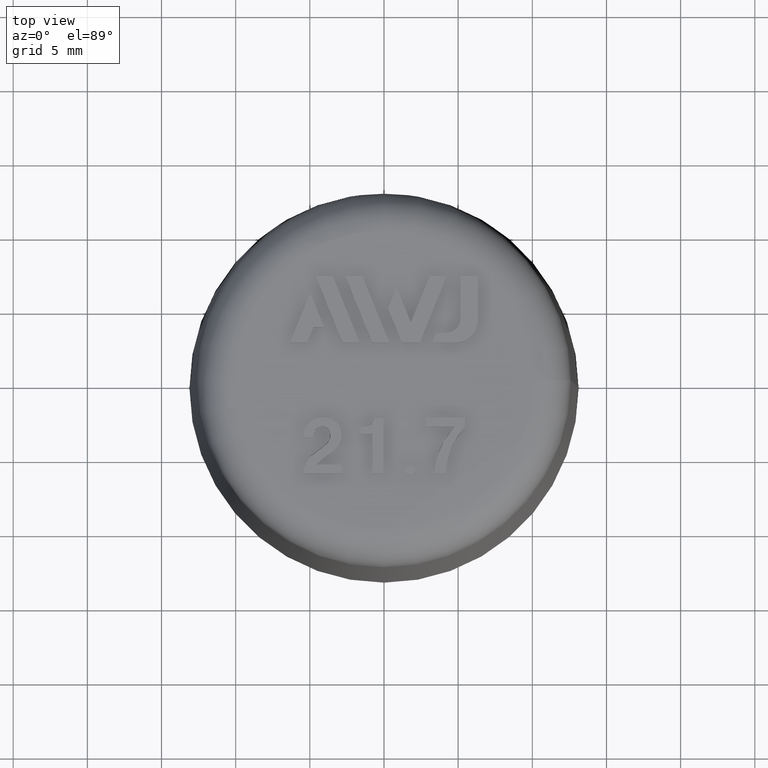
[diagram: clean part render]
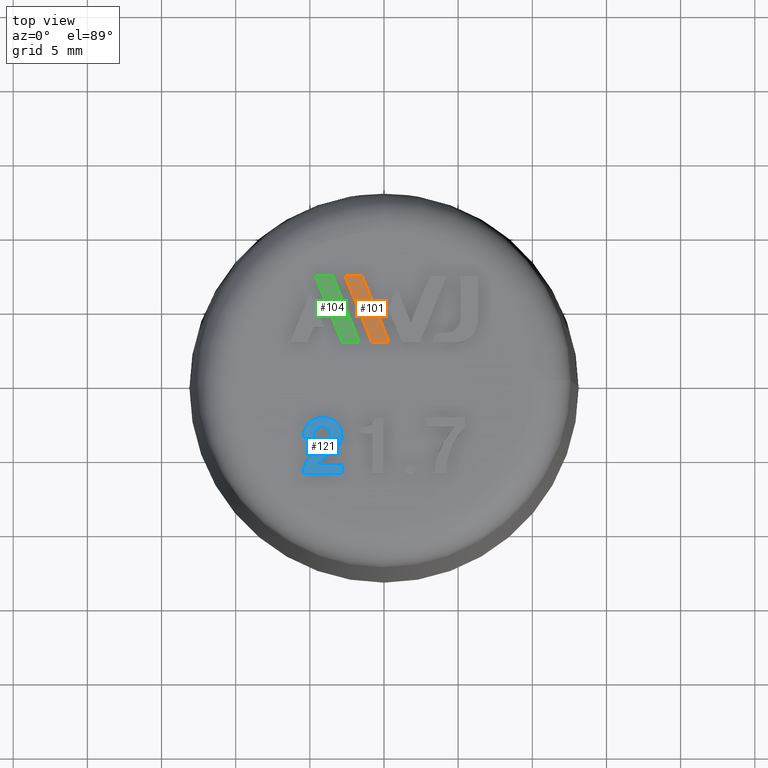
[diagram: same view with three faces highlighted in distinct colors, each labeled with its STEP entity id]
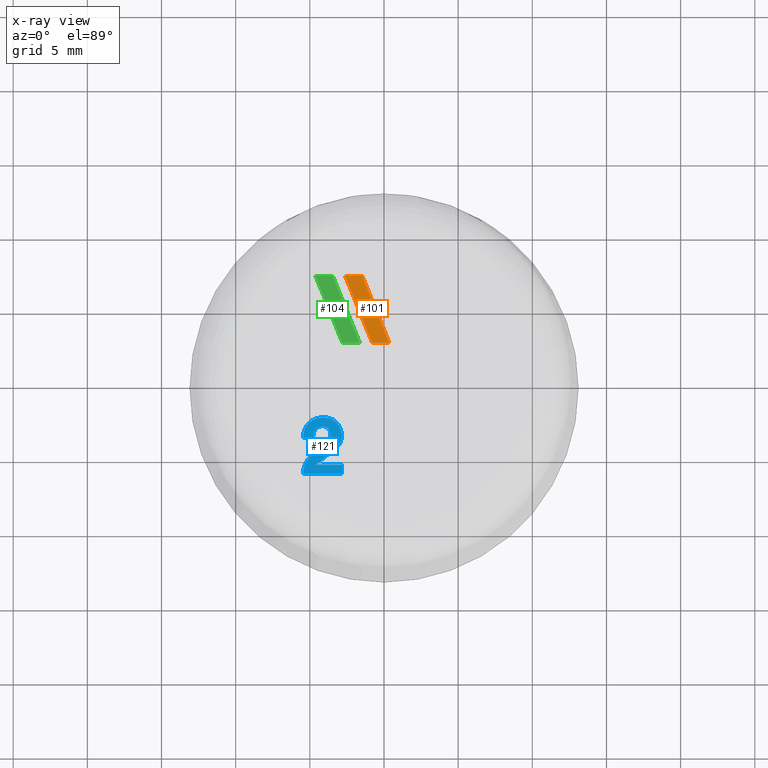
[diagram: x-ray of the same camera — body ghosted, the three highlighted faces saturated]
A machine part, top view with three faces highlighted in distinct colors.
The next image is the same camera in x-ray (body ghosted, the three faces saturated) — at least one of them is partly hidden behind the body in this view.
Their STEP definitions:

[orange] entity #101 — the highlighted planar face has unit normal (0, 0, -1).
#101 = ADVANCED_FACE( '', ( #208 ), #209, .F. );
#208 = FACE_OUTER_BOUND( '', #357, .T. );
#209 = PLANE( '', #358 );
#357 = EDGE_LOOP( '', ( #683, #684, #685, #686 ) );
#358 = AXIS2_PLACEMENT_3D( '', #687, #688, #689 );
#683 = ORIENTED_EDGE( '', *, *, #1081, .T. );
#684 = ORIENTED_EDGE( '', *, *, #1082, .T. );
#685 = ORIENTED_EDGE( '', *, *, #1077, .T. );
#686 = ORIENTED_EDGE( '', *, *, #1080, .T. );
#687 = CARTESIAN_POINT( '', ( -0.806505500000007, 2.50137604380109, 32.5000000000000 ) );
#688 = DIRECTION( '', ( 1.83690953073357E-016, 0.000000000000000, -1.00000000000000 ) );
#689 = DIRECTION( '', ( -0.780868809443031, 0.624695047554424, -1.43438535831848E-016 ) );
#1077 = EDGE_CURVE( '', #1308, #1306, #1309, .T. );
#1080 = EDGE_CURVE( '', #1306, #1311, #1313, .T. );
#1081 = EDGE_CURVE( '', #1311, #1314, #1315, .T. );
#1082 = EDGE_CURVE( '', #1314, #1308, #1316, .T. );
#1306 = VERTEX_POINT( '', #1750 );
#1308 = VERTEX_POINT( '', #1753 );
#1309 = LINE( '', #1754, #1755 );
#1311 = VERTEX_POINT( '', #1758 );
#1313 = LINE( '', #1761, #1762 );
#1314 = VERTEX_POINT( '', #1763 );
#1315 = LINE( '', #1764, #1765 );
#1316 = LINE( '', #1766, #1767 );
#1750 = CARTESIAN_POINT( '', ( -2.62348750000000, 6.99808404380110, 32.5000000000000 ) );
#1753 = CARTESIAN_POINT( '', ( -1.46150800000000, 6.99808404380110, 32.5000000000000 ) );
#1754 = CARTESIAN_POINT( '', ( -1.46150800000000, 6.99808404380110, 32.5000000000000 ) );
#1755 = VECTOR( '', #1987, 1000.00000000000 );
#1758 = CARTESIAN_POINT( '', ( -0.806505500000006, 2.50137604380109, 32.5000000000000 ) );
#1761 = CARTESIAN_POINT( '', ( -2.62348750000000, 6.99808404380110, 32.5000000000000 ) );
#1762 = VECTOR( '', #1990, 1000.00000000000 );
#1763 = CARTESIAN_POINT( '', ( 0.355474500000000, 2.50137604380109, 32.5000000000000 ) );
#1764 = CARTESIAN_POINT( '', ( -0.806505500000006, 2.50137604380109, 32.5000000000000 ) );
#1765 = VECTOR( '', #1991, 1000.00000000000 );
#1766 = CARTESIAN_POINT( '', ( 0.355474500000000, 2.50137604380109, 32.5000000000000 ) );
#1767 = VECTOR( '', #1992, 1000.00000000000 );
#1987 = DIRECTION( '', ( -1.00000000000000, 0.000000000000000, -1.83690953073357E-016 ) );
#1990 = DIRECTION( '', ( 0.374640987210496, -0.927169957829710, 6.88181600010391E-017 ) );
#1991 = DIRECTION( '', ( 1.00000000000000, -5.55111512312578E-017, 1.83690953073357E-016 ) );
#1992 = DIRECTION( '', ( -0.374641075834904, 0.927169922019295, -6.88181762805413E-017 ) );

[blue] entity #121 — the highlighted planar face has unit normal (-0, -0, 1).
#121 = ADVANCED_FACE( '', ( #248 ), #249, .T. );
#248 = FACE_OUTER_BOUND( '', #399, .T. );
#249 = PLANE( '', #400 );
#399 = EDGE_LOOP( '', ( #837, #838, #839, #840, #841, #842 ) );
#400 = AXIS2_PLACEMENT_3D( '', #843, #844, #845 );
#837 = ORIENTED_EDGE( '', *, *, #1099, .T. );
#838 = ORIENTED_EDGE( '', *, *, #1097, .T. );
#839 = ORIENTED_EDGE( '', *, *, #1064, .T. );
#840 = ORIENTED_EDGE( '', *, *, #1067, .T. );
#841 = ORIENTED_EDGE( '', *, *, #1069, .T. );
#842 = ORIENTED_EDGE( '', *, *, #1101, .T. );
#843 = CARTESIAN_POINT( '', ( -2.91063888252805, -3.37978264637524, 32.5000000000000 ) );
#844 = DIRECTION( '', ( -6.12303176911189E-017, -6.46234853557053E-033, 1.00000000000000 ) );
#845 = DIRECTION( '', ( 0.780868809443031, -0.624695047554424, 4.78128452772825E-017 ) );
#1064 = EDGE_CURVE( '', #1286, #1284, #1287, .T. );
#1067 = EDGE_CURVE( '', #1284, #1289, #1291, .T. );
#1069 = EDGE_CURVE( '', #1289, #1292, #1294, .T. );
#1097 = EDGE_CURVE( '', #1337, #1286, #1338, .T. );
#1099 = EDGE_CURVE( '', #1340, #1337, #1341, .T. );
#1101 = EDGE_CURVE( '', #1292, #1340, #1343, .T. );
#1284 = VERTEX_POINT( '', #1705 );
#1286 = VERTEX_POINT( '', #1708 );
#1287 = B_SPLINE_CURVE_WITH_KNOTS( '', 2, ( #1709, #1710, #1711 ), .UNSPECIFIED., .F., .F., ( 3, 3 ), ( -16.0000000000000, -15.0000000000000 ), .UNSPECIFIED. );
#1289 = VERTEX_POINT( '', #1714 );
#1291 = B_SPLINE_CURVE_WITH_KNOTS( '', 2, ( #1717, #1718, #1719, #1720, #1721, #1722, #1723, #1724, #1725, #1726, #1727, #1728, #1729 ), .UNSPECIFIED., .F., .F., ( 3, 2, 2, 2, 2, 2, 3 ), ( -15.0000000000000, -14.0000000000000, -13.0000000000000, -12.0000000000000, -11.0000000000000, -10.0000000000000, -9.00000000000000 ), .UNSPECIFIED. );
#1292 = VERTEX_POINT( '', #1730 );
#1294 = B_SPLINE_CURVE_WITH_KNOTS( '', 2, ( #1733, #1734, #1735 ), .UNSPECIFIED., .F., .F., ( 3, 3 ), ( -9.00000000000000, -8.00000000000000 ), .UNSPECIFIED. );
#1337 = VERTEX_POINT( '', #1802 );
#1338 = B_SPLINE_CURVE_WITH_KNOTS( '', 2, ( #1803, #1804, #1805, #1806, #1807, #1808, #1809, #1810, #1811, #1812, #1813, #1814, #1815 ), .UNSPECIFIED., .F., .F., ( 3, 2, 2, 2, 2, 2, 3 ), ( -6.00000000000000, -5.00000000000000, -4.00000000000000, -3.00000000000000, -2.00000000000000, -1.00000000000000, 0.000000000000000 ), .UNSPECIFIED. );
#1340 = VERTEX_POINT( '', #1818 );
#1341 = B_SPLINE_CURVE_WITH_KNOTS( '', 2, ( #1819, #1820, #1821 ), .UNSPECIFIED., .F., .F., ( 3, 3 ), ( -7.00000000000000, -6.00000000000000 ), .UNSPECIFIED. );
#1343 = B_SPLINE_CURVE_WITH_KNOTS( '', 2, ( #1824, #1825, #1826 ), .UNSPECIFIED., .F., .F., ( 3, 3 ), ( -8.00000000000000, -7.00000000000000 ), .UNSPECIFIED. );
#1705 = CARTESIAN_POINT( '', ( -4.78909090909091, -3.88953304710800, 32.5000000000000 ) );
#1708 = CARTESIAN_POINT( '', ( -5.44363636363637, -3.88953304710800, 32.5000000000000 ) );
#1709 = CARTESIAN_POINT( '', ( -5.44363636363637, -3.88953304710800, 32.5000000000000 ) );
#1710 = CARTESIAN_POINT( '', ( -5.11636363636364, -3.88953304710800, 32.5000000000000 ) );
#1711 = CARTESIAN_POINT( '', ( -4.78909090909091, -3.88953304710800, 32.5000000000000 ) );
#1714 = CARTESIAN_POINT( '', ( -5.44363636363637, -6.32589668347164, 32.5000000000000 ) );
#1717 = CARTESIAN_POINT( '', ( -4.78909090909091, -3.88953304710800, 32.5000000000000 ) );
#1718 = CARTESIAN_POINT( '', ( -4.74545454545455, -3.36226031983528, 32.5000000000000 ) );
#1719 = CARTESIAN_POINT( '', ( -4.41737977743370, -3.20024808871387, 32.5000000000000 ) );
#1720 = CARTESIAN_POINT( '', ( -4.15636363636364, -3.07135122892619, 32.5000000000000 ) );
#1721 = CARTESIAN_POINT( '', ( -3.93616535036129, -3.17620755559397, 32.5000000000000 ) );
#1722 = CARTESIAN_POINT( '', ( -3.69818181818182, -3.28953304710800, 32.5000000000000 ) );
#1723 = CARTESIAN_POINT( '', ( -3.62856884919277, -3.56669579400885, 32.5000000000000 ) );
#1724 = CARTESIAN_POINT( '', ( -3.50181818181819, -4.07135122892619, 32.5000000000000 ) );
#1725 = CARTESIAN_POINT( '', ( -4.02681802687711, -4.45128532732409, 32.5000000000000 ) );
#1726 = CARTESIAN_POINT( '', ( -4.33090909090909, -4.67135122892619, 32.5000000000000 ) );
#1727 = CARTESIAN_POINT( '', ( -4.63536834189471, -4.89091318877158, 32.5000000000000 ) );
#1728 = CARTESIAN_POINT( '', ( -5.46545454545455, -5.48953304710800, 32.5000000000000 ) );
#1729 = CARTESIAN_POINT( '', ( -5.44363636363637, -6.32589668347164, 32.5000000000000 ) );
#1730 = CARTESIAN_POINT( '', ( -2.82545454545455, -6.32589668347164, 32.5000000000000 ) );
#1733 = CARTESIAN_POINT( '', ( -5.44363636363637, -6.32589668347164, 32.5000000000000 ) );
#1734 = CARTESIAN_POINT( '', ( -4.13454545454546, -6.32589668347164, 32.5000000000000 ) );
#1735 = CARTESIAN_POINT( '', ( -2.82545454545455, -6.32589668347164, 32.5000000000000 ) );
#1802 = CARTESIAN_POINT( '', ( -4.59272727272728, -5.72589668347164, 32.5000000000000 ) );
#1803 = CARTESIAN_POINT( '', ( -4.59272727272728, -5.72589668347164, 32.5000000000000 ) );
#1804 = CARTESIAN_POINT( '', ( -4.46181818181818, -5.56226031983528, 32.5000000000000 ) );
#1805 = CARTESIAN_POINT( '', ( -4.06822287683542, -5.27253044255629, 32.5000000000000 ) );
#1806 = CARTESIAN_POINT( '', ( -3.80727272727273, -5.08044213801709, 32.5000000000000 ) );
#1807 = CARTESIAN_POINT( '', ( -3.54026948374034, -4.89708342910982, 32.5000000000000 ) );
#1808 = CARTESIAN_POINT( '', ( -2.62909090909091, -4.27135122892619, 32.5000000000000 ) );
#1809 = CARTESIAN_POINT( '', ( -2.91063888252805, -3.37978264637524, 32.5000000000000 ) );
#1810 = CARTESIAN_POINT( '', ( -3.17454545454546, -2.54407850165346, 32.5000000000000 ) );
#1811 = CARTESIAN_POINT( '', ( -4.11272727272728, -2.54407850165346, 32.5000000000000 ) );
#1812 = CARTESIAN_POINT( '', ( -4.65818181818182, -2.54407850165346, 32.5000000000000 ) );
#1813 = CARTESIAN_POINT( '', ( -5.04184503827045, -2.89932222395774, 32.5000000000000 ) );
#1814 = CARTESIAN_POINT( '', ( -5.44363636363637, -3.27135122892618, 32.5000000000000 ) );
#1815 = CARTESIAN_POINT( '', ( -5.44363636363637, -3.88953304710800, 32.5000000000000 ) );
#1818 = CARTESIAN_POINT( '', ( -2.82545454545455, -5.72589668347164, 32.5000000000000 ) );
#1819 = CARTESIAN_POINT( '', ( -2.82545454545455, -5.72589668347164, 32.5000000000000 ) );
#1820 = CARTESIAN_POINT( '', ( -3.70909090909091, -5.72589668347164, 32.5000000000000 ) );
#1821 = CARTESIAN_POINT( '', ( -4.59272727272728, -5.72589668347164, 32.5000000000000 ) );
#1824 = CARTESIAN_POINT( '', ( -2.82545454545455, -6.32589668347164, 32.5000000000000 ) );
#1825 = CARTESIAN_POINT( '', ( -2.82545454545455, -6.02589668347164, 32.5000000000000 ) );
#1826 = CARTESIAN_POINT( '', ( -2.82545454545455, -5.72589668347164, 32.5000000000000 ) );

[green] entity #104 — the highlighted planar face has unit normal (0, 0, -1).
#104 = ADVANCED_FACE( '', ( #214 ), #215, .F. );
#214 = FACE_OUTER_BOUND( '', #363, .T. );
#215 = PLANE( '', #364 );
#363 = EDGE_LOOP( '', ( #704, #705, #706, #707 ) );
#364 = AXIS2_PLACEMENT_3D( '', #708, #709, #710 );
#704 = ORIENTED_EDGE( '', *, *, #1084, .T. );
#705 = ORIENTED_EDGE( '', *, *, #1085, .T. );
#706 = ORIENTED_EDGE( '', *, *, #1086, .T. );
#707 = ORIENTED_EDGE( '', *, *, #1087, .T. );
#708 = CARTESIAN_POINT( '', ( -2.80451850000000, 2.50137604380109, 32.5000000000000 ) );
#709 = DIRECTION( '', ( 1.83690953073357E-016, 3.87740912134232E-032, -1.00000000000000 ) );
#710 = DIRECTION( '', ( -0.780868809443031, 0.624695047554424, -1.43438535831848E-016 ) );
#1084 = EDGE_CURVE( '', #1318, #1319, #1320, .T. );
#1085 = EDGE_CURVE( '', #1319, #1321, #1322, .T. );
#1086 = EDGE_CURVE( '', #1321, #1323, #1324, .T. );
#1087 = EDGE_CURVE( '', #1323, #1318, #1325, .T. );
#1318 = VERTEX_POINT( '', #1770 );
#1319 = VERTEX_POINT( '', #1771 );
#1320 = LINE( '', #1772, #1773 );
#1321 = VERTEX_POINT( '', #1774 );
#1322 = LINE( '', #1775, #1776 );
#1323 = VERTEX_POINT( '', #1777 );
#1324 = LINE( '', #1778, #1779 );
#1325 = LINE( '', #1780, #1781 );
#1770 = CARTESIAN_POINT( '', ( -2.80451850000000, 2.50137604380109, 32.5000000000000 ) );
#1771 = CARTESIAN_POINT( '', ( -1.64262150000000, 2.50137604380109, 32.5000000000000 ) );
#1772 = CARTESIAN_POINT( '', ( -2.80451850000000, 2.50137604380109, 32.5000000000000 ) );
#1773 = VECTOR( '', #1994, 1000.00000000000 );
#1774 = CARTESIAN_POINT( '', ( -3.45960400000000, 6.99808404380110, 32.5000000000000 ) );
#1775 = CARTESIAN_POINT( '', ( -1.64262150000000, 2.50137604380109, 32.5000000000000 ) );
#1776 = VECTOR( '', #1995, 1000.00000000000 );
#1777 = CARTESIAN_POINT( '', ( -4.62124550000000, 6.99808404380110, 32.5000000000000 ) );
#1778 = CARTESIAN_POINT( '', ( -3.45960400000000, 6.99808404380110, 32.5000000000000 ) );
#1779 = VECTOR( '', #1996, 1000.00000000000 );
#1780 = CARTESIAN_POINT( '', ( -4.62124550000000, 6.99808404380110, 32.5000000000000 ) );
#1781 = VECTOR( '', #1997, 1000.00000000000 );
#1994 = DIRECTION( '', ( 1.00000000000000, -5.55111512312578E-017, 1.83690953073357E-016 ) );
#1995 = DIRECTION( '', ( -0.374641075834904, 0.927169922019295, -6.88181762805413E-017 ) );
#1996 = DIRECTION( '', ( -1.00000000000000, 5.55111512312578E-017, -1.83690953073357E-016 ) );
#1997 = DIRECTION( '', ( 0.374595787424495, -0.927188220397468, 6.88098572092699E-017 ) );